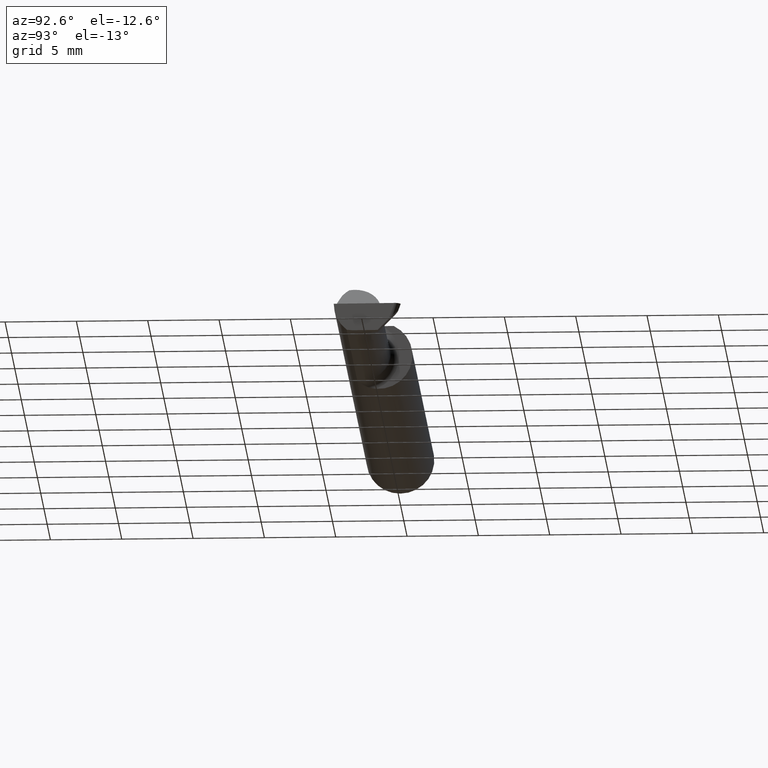
[diagram: clean part render]
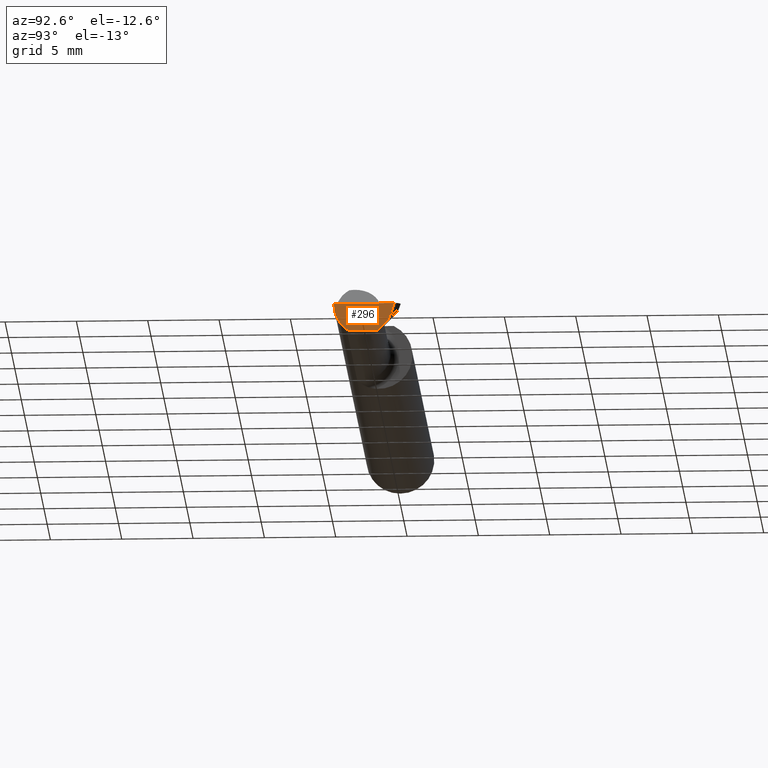
[diagram: same view with one face highlighted and labeled with its STEP entity id]
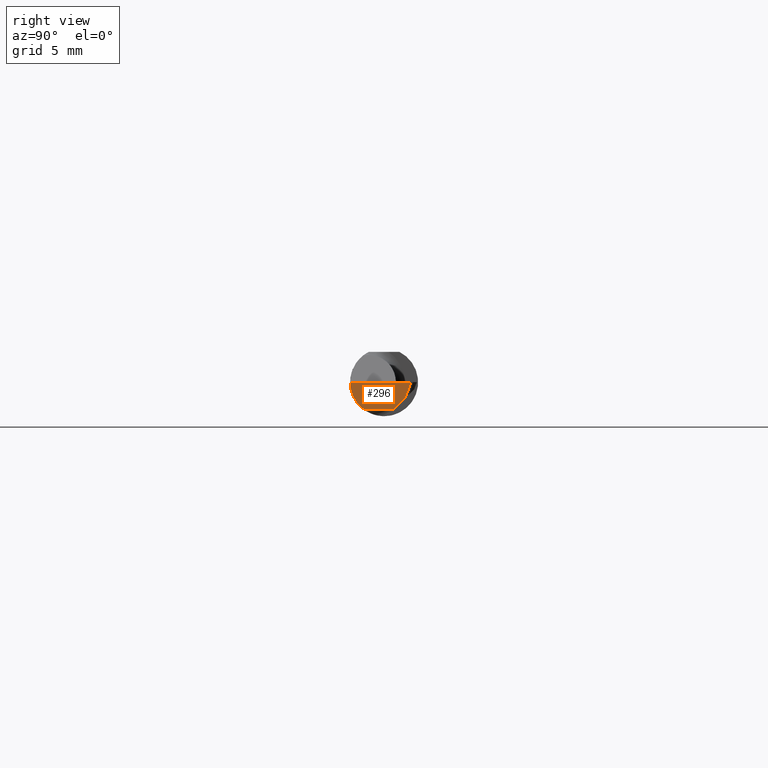
[diagram: same view with one face highlighted and labeled with its STEP entity id]
A machine part, auxiliary view. The second image highlights one B-rep face of the part: STEP entity #296.
A second angle (right view) of the same face is appended — the face is thin or edge-on in the first view.
In plain terms, the highlighted planar face has unit normal (-0.9992, 0.0174, 0.0349).
Its self-contained STEP definition (entity closure, byte-faithful):
#33 = CARTESIAN_POINT ( 'NONE',  ( 1.995346537079453419, -0.08092595952420826577, -0.05530971394246244482 ) ) ;
#47 = VECTOR ( 'NONE', #733, 39.37007874015748143 ) ;
#53 = LINE ( 'NONE', #465, #47 ) ;
#81 = CARTESIAN_POINT ( 'NONE',  ( 1.998141998353699433, 0.05785528259492388886, -0.04462928295401853013 ) ) ;
#87 = CARTESIAN_POINT ( 'NONE',  ( 1.995113740419715231, -0.05810704225352111146, -0.07337936794867830348 ) ) ;
#93 = CARTESIAN_POINT ( 'NONE',  ( 1.995327814509989528, -0.04259999999999980469, -0.07500000000000002498 ) ) ;
#98 = VECTOR ( 'NONE', #327, 39.37007874015748854 ) ;
#118 = EDGE_CURVE ( 'NONE', #614, #285, #324, .T. ) ;
#129 = ORIENTED_EDGE ( 'NONE', *, *, #118, .F. ) ;
#139 = LINE ( 'NONE', #382, #98 ) ;
#151 = CARTESIAN_POINT ( 'NONE',  ( 1.995113740419715231, -0.05810704225352111146, -0.07337936794867830348 ) ) ;
#158 = CARTESIAN_POINT ( 'NONE',  ( 1.995236768857725718, -0.04781600192481513800, -0.07500000000000002498 ) ) ;
#160 = CARTESIAN_POINT ( 'NONE',  ( 1.995327814509989528, -0.04259999999999980469, -0.07500000000000002498 ) ) ;
#195 = ORIENTED_EDGE ( 'NONE', *, *, #354, .F. ) ;
#274 = CARTESIAN_POINT ( 'NONE',  ( 1.996040470437265402, -0.09360000000000003040, -0.02910696448121679811 ) ) ;
#285 = VERTEX_POINT ( 'NONE', #160 ) ;
#296 = ADVANCED_FACE ( 'NONE', ( #709 ), #769, .F. ) ;
#313 = EDGE_CURVE ( 'NONE', #344, #285, #323, .T. ) ;
#323 =( BOUNDED_CURVE ( )  B_SPLINE_CURVE ( 3, ( #151, #577, #158, #93 ),
 .UNSPECIFIED., .F., .F. ) 
 B_SPLINE_CURVE_WITH_KNOTS ( ( 4, 4 ),
 ( 0.2552020043920769088, 0.4634648172053365545 ),
 .UNSPECIFIED. ) 
 CURVE ( )  GEOMETRIC_REPRESENTATION_ITEM ( )  RATIONAL_B_SPLINE_CURVE ( ( 1.000000000000000000, 0.9963888149483994816, 0.9963888149483994816, 1.000000000000000000 ) ) 
 REPRESENTATION_ITEM ( '' )  );
#324 = LINE ( 'NONE', #689, #792 ) ;
#327 = DIRECTION ( 'NONE',  ( 0.03876062227022335910, 0.3417631236437465025, 0.9389864650134709390 ) ) ;
#328 = CARTESIAN_POINT ( 'NONE',  ( 1.999997674911211609, 0.07486755121428030624, 0.000000000000000000 ) ) ;
#344 = VERTEX_POINT ( 'NONE', #774 ) ;
#354 = EDGE_CURVE ( 'NONE', #344, #417, #571, .T. ) ;
#360 = CARTESIAN_POINT ( 'NONE',  ( 1.997057062866469668, -0.09360000000000001652, 0.000000000000000000 ) ) ;
#364 = CARTESIAN_POINT ( 'NONE',  ( 1.996745115830019568, 0.03118762788560754812, -0.07129693766333515537 ) ) ;
#375 = EDGE_CURVE ( 'NONE', #624, #417, #53, .T. ) ;
#381 = DIRECTION ( 'NONE',  ( -0.01745240643727633684, -0.9998476951563912696, 0.000000000000000000 ) ) ;
#382 = CARTESIAN_POINT ( 'NONE',  ( 1.999994460970140109, 0.07418895767924951756, 0.0002471205168746631116 ) ) ;
#417 = VERTEX_POINT ( 'NONE', #360 ) ;
#453 = EDGE_CURVE ( 'NONE', #715, #614, #680, .T. ) ;
#465 = CARTESIAN_POINT ( 'NONE',  ( 1.999997674911211609, 0.07486755121428030624, 0.000000000000000000 ) ) ;
#520 = DIRECTION ( 'NONE',  ( 0.03490480639812536257, 0.000000000000000000, 0.9993906415863165194 ) ) ;
#550 = CARTESIAN_POINT ( 'NONE',  ( 1.996551145152111628, 0.02748456554894272708, -0.07500000000000002498 ) ) ;
#565 = AXIS2_PLACEMENT_3D ( 'NONE', #328, #780, #520 ) ;
#571 =( BOUNDED_CURVE ( )  B_SPLINE_CURVE ( 3, ( #87, #33, #274, #777 ),
 .UNSPECIFIED., .F., .T. ) 
 B_SPLINE_CURVE_WITH_KNOTS ( ( 4, 4 ),
 ( 0.2063001339125341005, 1.107331509589563945 ),
 .UNSPECIFIED. ) 
 CURVE ( )  GEOMETRIC_REPRESENTATION_ITEM ( )  RATIONAL_B_SPLINE_CURVE ( ( 1.000000000000000000, 0.9334817841311873199, 0.9334817841311873199, 1.000000000000000000 ) ) 
 REPRESENTATION_ITEM ( '' )  );
#577 = CARTESIAN_POINT ( 'NONE',  ( 1.995165152206654691, -0.05300374992736052449, -0.07445783144524574515 ) ) ;
#586 = EDGE_LOOP ( 'NONE', ( #617, #597, #721, #195, #804, #129 ) ) ;
#597 = ORIENTED_EDGE ( 'NONE', *, *, #688, .T. ) ;
#614 = VERTEX_POINT ( 'NONE', #550 ) ;
#617 = ORIENTED_EDGE ( 'NONE', *, *, #453, .F. ) ;
#622 = CARTESIAN_POINT ( 'NONE',  ( 1.999984260029693539, 0.07409901316683065176, 0.000000000000000000 ) ) ;
#624 = VERTEX_POINT ( 'NONE', #622 ) ;
#680 = LINE ( 'NONE', #364, #771 ) ;
#688 = EDGE_CURVE ( 'NONE', #715, #624, #139, .T. ) ;
#689 = CARTESIAN_POINT ( 'NONE',  ( 1.995364534437481741, -0.04049631676287030607, -0.07500000000000002498 ) ) ;
#709 = FACE_OUTER_BOUND ( 'NONE', #586, .T. ) ;
#715 = VERTEX_POINT ( 'NONE', #81 ) ;
#721 = ORIENTED_EDGE ( 'NONE', *, *, #375, .T. ) ;
#733 = DIRECTION ( 'NONE',  ( -0.01745240643727633684, -0.9998476951563912696, 0.000000000000000000 ) ) ;
#769 = PLANE ( 'NONE',  #565 ) ;
#771 = VECTOR ( 'NONE', #806, 39.37007874015748143 ) ;
#774 = CARTESIAN_POINT ( 'NONE',  ( 1.995113740419715231, -0.05810704225352111146, -0.07337936794867830348 ) ) ;
#777 = CARTESIAN_POINT ( 'NONE',  ( 1.997057062866469668, -0.09360000000000001652, 0.000000000000000000 ) ) ;
#780 = DIRECTION ( 'NONE',  ( -0.9992386149554827179, 0.01744177490282298668, 0.03489949670250104552 ) ) ;
#792 = VECTOR ( 'NONE', #381, 39.37007874015748854 ) ;
#804 = ORIENTED_EDGE ( 'NONE', *, *, #313, .T. ) ;
#806 = DIRECTION ( 'NONE',  ( -0.03701368837992437266, -0.7066222423871552083, -0.7066222423871628688 ) ) ;